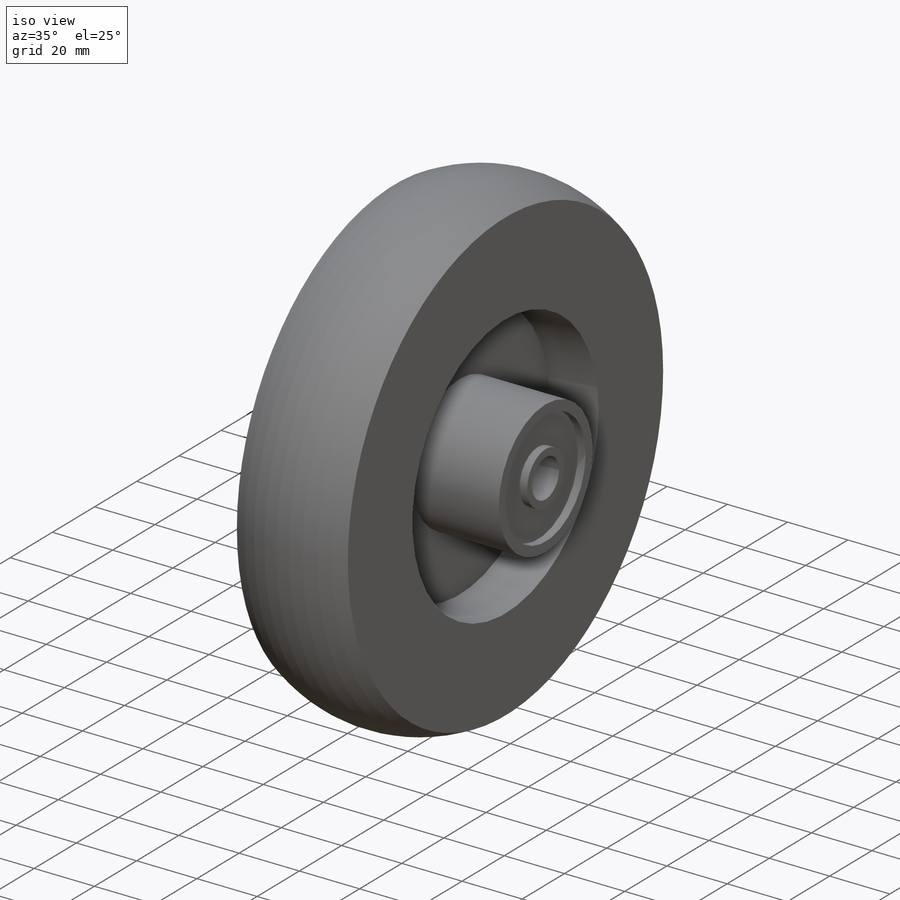
[diagram: iso view]
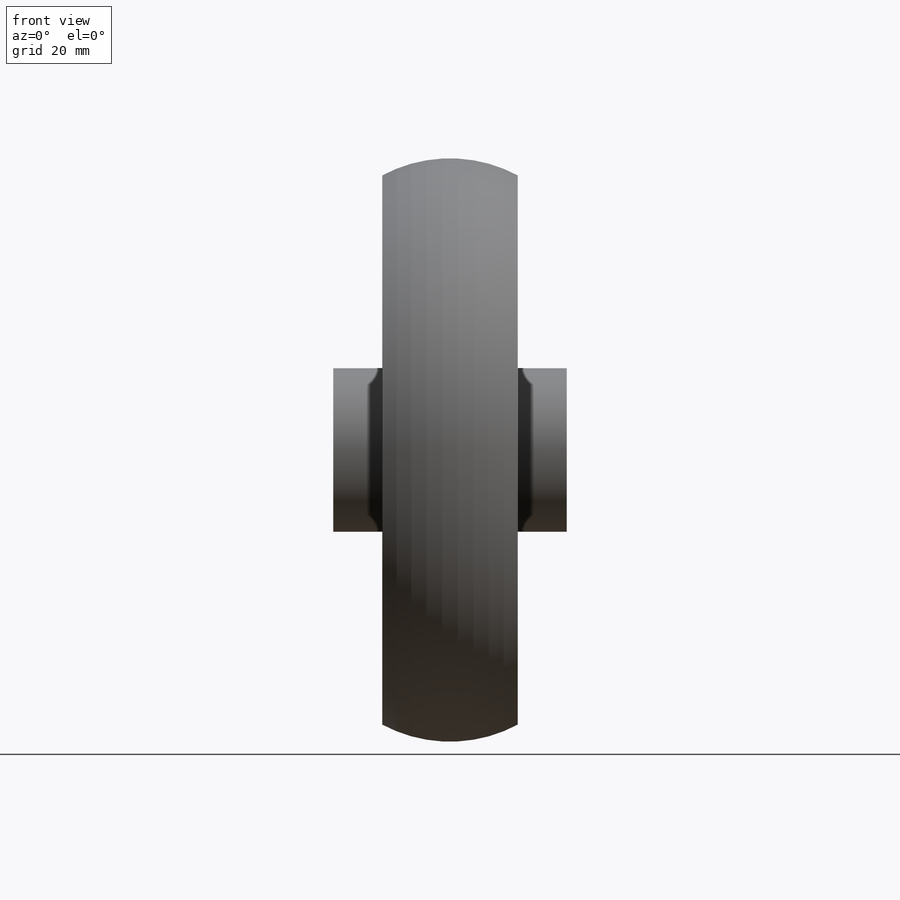
[diagram: front view]
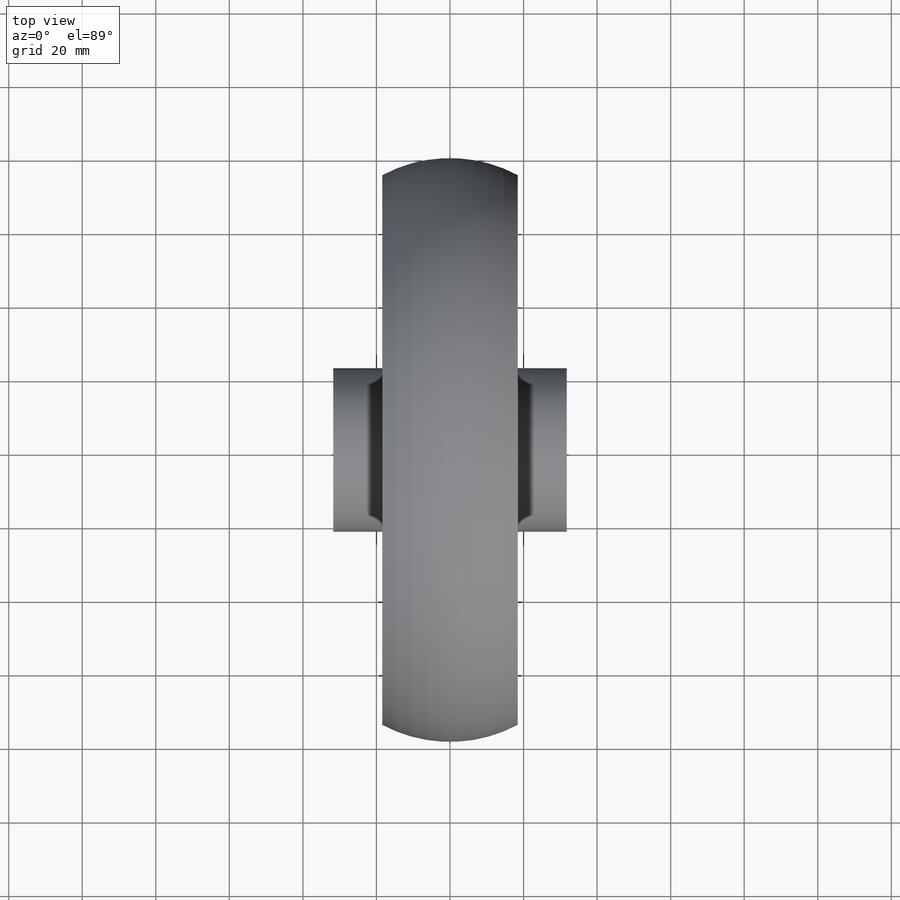
[diagram: top view]
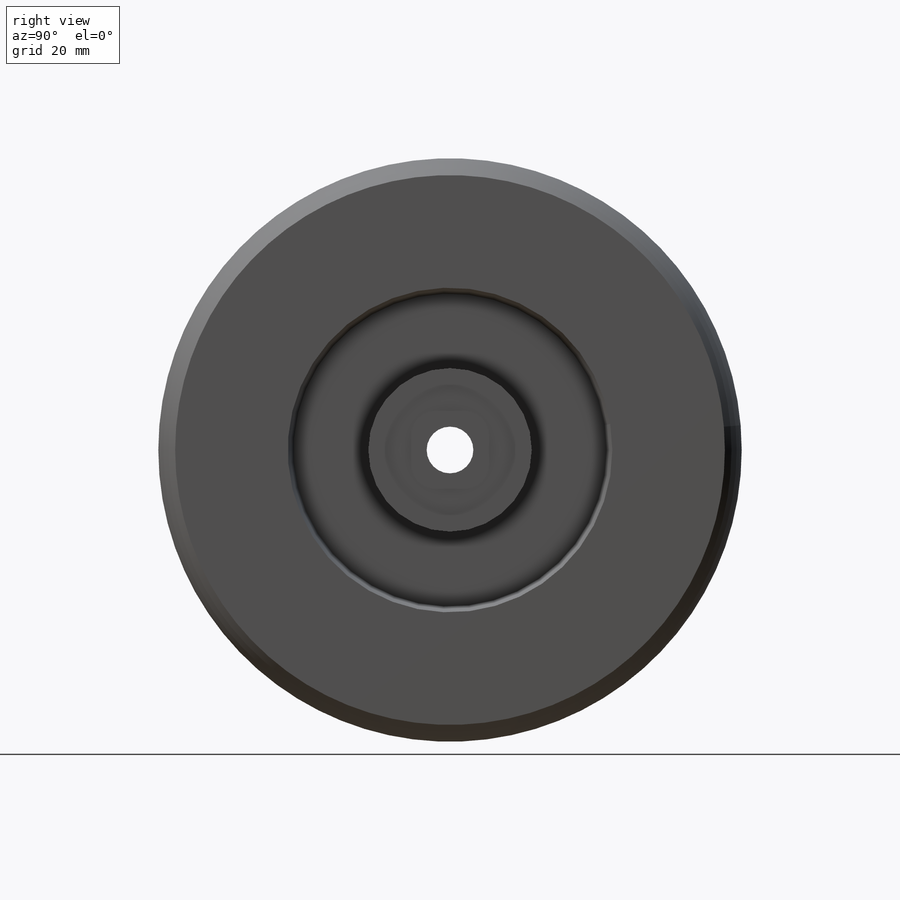
[diagram: right view]
SOLIDWORKS PART (.sldprt)
format: sldprt  version: not decoded by parser v0  size: 204,288 bytes
history: native  units: mm
features: sketch x3, cut_extrude x2, material x1, revolve x1, mirror x1 (+11 scaffold rows collapsed)
feature tree (19):
  scaffold x11  (default folders/planes/origin — collapsed)
  material  "Material <not specified>"
  sketch  "Sketch1"  dims[c1.D1=22.7965mm c1.D2=158.75mm c1.D3=60.071mm c1.D4=28.448mm c1.D5=38.608mm c1.D6=158.75mm c1.D7=19.05mm c2.D1=158.75mm c2.D2=79.375mm c2.D3=22.7965mm c2.D4=36.83mm c2.D5=15.24mm c2.D6=20.32mm c2.D7=28.575mm c2.D8=72.263mm c3.D3=31.75mm]
  revolve  "Revolve1"  Angle=360deg
  sketch  "Sketch2"  dims[D1=12.7mm]
  cut_extrude  "Cut-Extrude1"  Depth=2.54mm
  sketch  "Sketch3"  dims[D1=12.7mm]
  cut_extrude  "Cut-Extrude2"  [1 undecoded]
  mirror  "Mirror3"
decode coverage: 5 of 7 modeling features carry decoded parameters
note: 1 parameter value undecoded
note: suppression state not decoded; provenance and decode notes live in map.json
